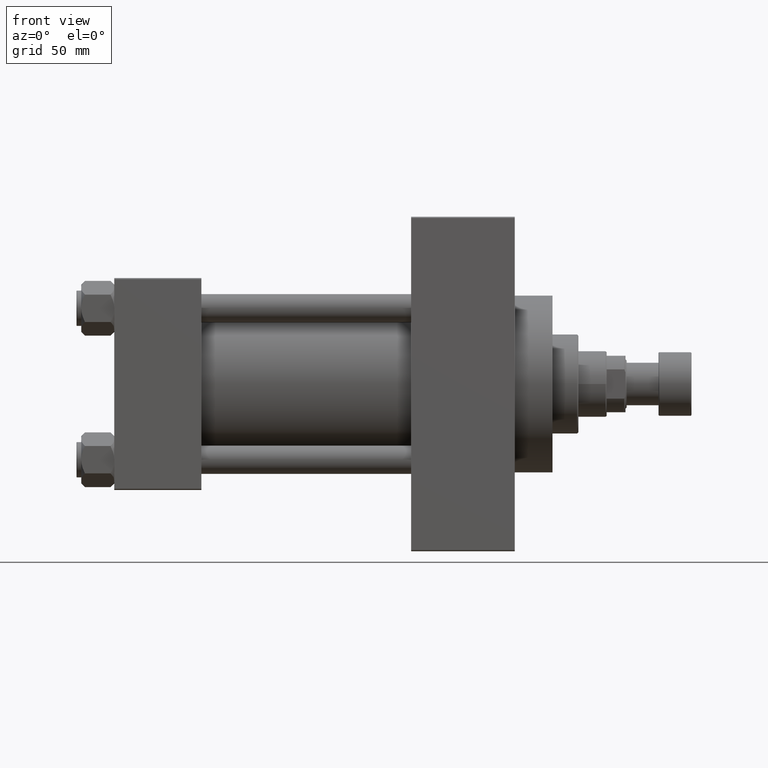
[diagram: clean part render]
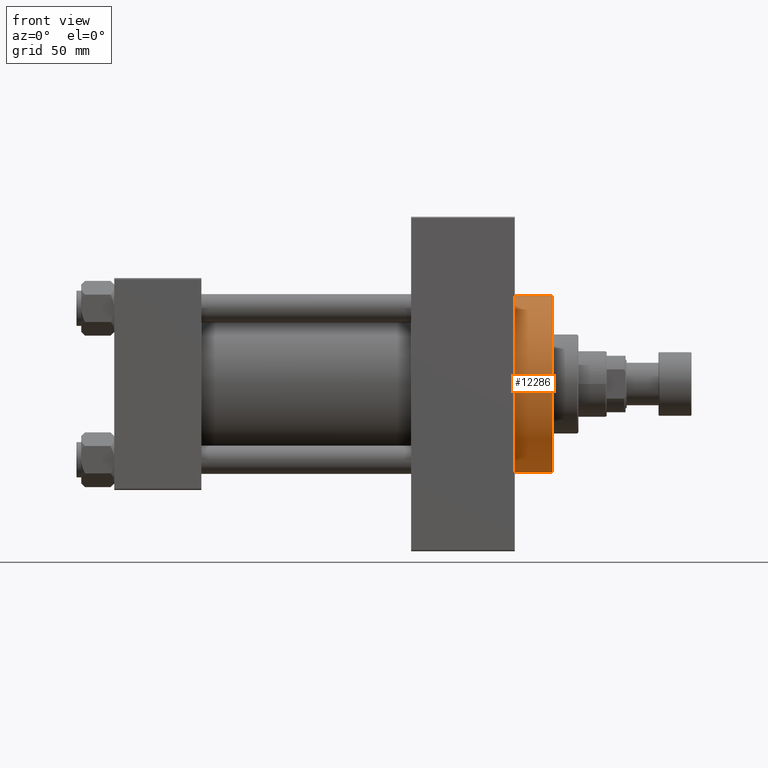
[diagram: same view with one face highlighted and labeled with its STEP entity id]
A machine part, front view. The second image highlights one B-rep face of the part: STEP entity #12286.
In plain terms, the highlighted cylindrical surface (partial cylindrical patch) has radius 37.5 mm, axis along (-1, -0, -0).
Its self-contained STEP definition (entity closure, byte-faithful):
#622 = VERTEX_POINT ( 'NONE', #7131 ) ;
#1740 = CARTESIAN_POINT ( 'NONE',  ( 186.0000000000000000, 0.000000000000000000, 37.50000000000000711 ) ) ;
#2456 = DIRECTION ( 'NONE',  ( 0.000000000000000000, 0.000000000000000000, 1.000000000000000000 ) ) ;
#6805 = CARTESIAN_POINT ( 'NONE',  ( 186.0000000000000000, 0.000000000000000000, 0.000000000000000000 ) ) ;
#7131 = CARTESIAN_POINT ( 'NONE',  ( 186.0000000000000000, 0.000000000000000000, 37.50000000000000711 ) ) ;
#7424 = ORIENTED_EDGE ( 'NONE', *, *, #21844, .F. ) ;
#7703 = CARTESIAN_POINT ( 'NONE',  ( 169.9999999999999716, 0.000000000000000000, 0.000000000000000000 ) ) ;
#10064 = AXIS2_PLACEMENT_3D ( 'NONE', #32575, #43435, #2456 ) ;
#11249 = CARTESIAN_POINT ( 'NONE',  ( 169.9999999999999716, 4.592425496802575156E-15, -37.50000000000000711 ) ) ;
#12286 = ADVANCED_FACE ( 'NONE', ( #13561 ), #35726, .T. ) ;
#13069 = LINE ( 'NONE', #1740, #24188 ) ;
#13561 = FACE_OUTER_BOUND ( 'NONE', #34725, .T. ) ;
#14477 = DIRECTION ( 'NONE',  ( 0.000000000000000000, 0.000000000000000000, -1.000000000000000000 ) ) ;
#14752 = VERTEX_POINT ( 'NONE', #21534 ) ;
#17884 = ORIENTED_EDGE ( 'NONE', *, *, #32452, .F. ) ;
#19454 = VERTEX_POINT ( 'NONE', #38163 ) ;
#19483 = EDGE_CURVE ( 'NONE', #622, #19454, #13069, .T. ) ;
#19950 = ORIENTED_EDGE ( 'NONE', *, *, #19483, .T. ) ;
#21534 = CARTESIAN_POINT ( 'NONE',  ( 186.0000000000000000, 4.592425496802575156E-15, -37.50000000000000711 ) ) ;
#21574 = LINE ( 'NONE', #32407, #22624 ) ;
#21844 = EDGE_CURVE ( 'NONE', #14752, #43014, #21574, .T. ) ;
#22624 = VECTOR ( 'NONE', #32651, 1000.000000000000000 ) ;
#24188 = VECTOR ( 'NONE', #42715, 1000.000000000000000 ) ;
#25636 = DIRECTION ( 'NONE',  ( 1.000000000000000000, 0.000000000000000000, 0.000000000000000000 ) ) ;
#28336 = AXIS2_PLACEMENT_3D ( 'NONE', #7703, #36163, #14477 ) ;
#30286 = EDGE_CURVE ( 'NONE', #19454, #43014, #32182, .T. ) ;
#32182 = CIRCLE ( 'NONE', #28336, 37.50000000000000711 ) ;
#32407 = CARTESIAN_POINT ( 'NONE',  ( 186.0000000000000000, 4.592425496802575156E-15, -37.50000000000000711 ) ) ;
#32452 = EDGE_CURVE ( 'NONE', #622, #14752, #37657, .T. ) ;
#32575 = CARTESIAN_POINT ( 'NONE',  ( 186.0000000000000000, 0.000000000000000000, 0.000000000000000000 ) ) ;
#32651 = DIRECTION ( 'NONE',  ( -1.000000000000000000, -0.000000000000000000, -0.000000000000000000 ) ) ;
#34725 = EDGE_LOOP ( 'NONE', ( #7424, #17884, #19950, #34868 ) ) ;
#34868 = ORIENTED_EDGE ( 'NONE', *, *, #30286, .T. ) ;
#35726 = CYLINDRICAL_SURFACE ( 'NONE', #10064, 37.50000000000000711 ) ;
#36163 = DIRECTION ( 'NONE',  ( 1.000000000000000000, 0.000000000000000000, 0.000000000000000000 ) ) ;
#37657 = CIRCLE ( 'NONE', #47653, 37.50000000000000711 ) ;
#38163 = CARTESIAN_POINT ( 'NONE',  ( 169.9999999999999716, 0.000000000000000000, 37.50000000000000711 ) ) ;
#40343 = DIRECTION ( 'NONE',  ( 0.000000000000000000, 0.000000000000000000, -1.000000000000000000 ) ) ;
#42715 = DIRECTION ( 'NONE',  ( -1.000000000000000000, -0.000000000000000000, -0.000000000000000000 ) ) ;
#43014 = VERTEX_POINT ( 'NONE', #11249 ) ;
#43435 = DIRECTION ( 'NONE',  ( -1.000000000000000000, -0.000000000000000000, -0.000000000000000000 ) ) ;
#47653 = AXIS2_PLACEMENT_3D ( 'NONE', #6805, #25636, #40343 ) ;